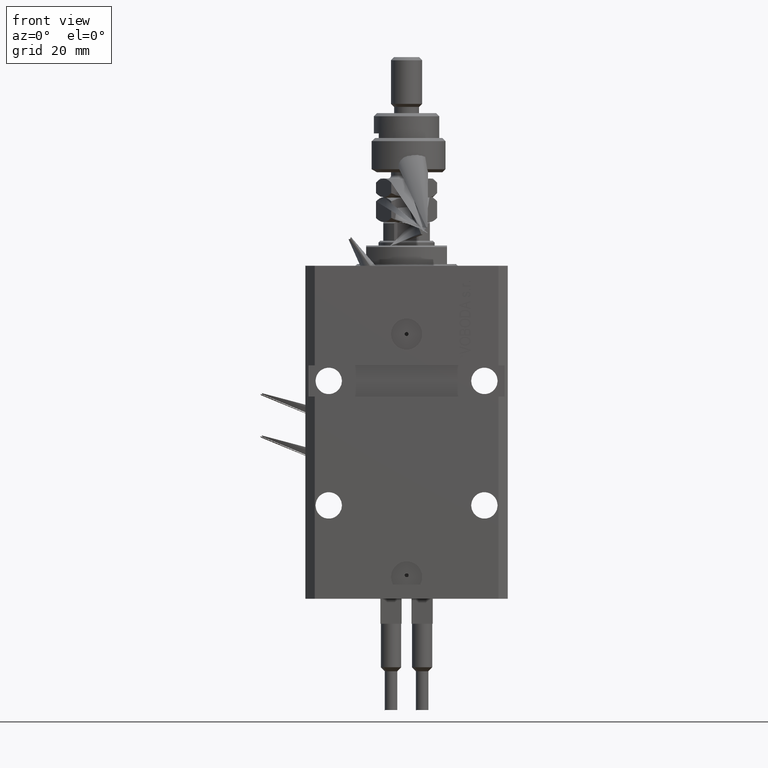
[diagram: clean part render]
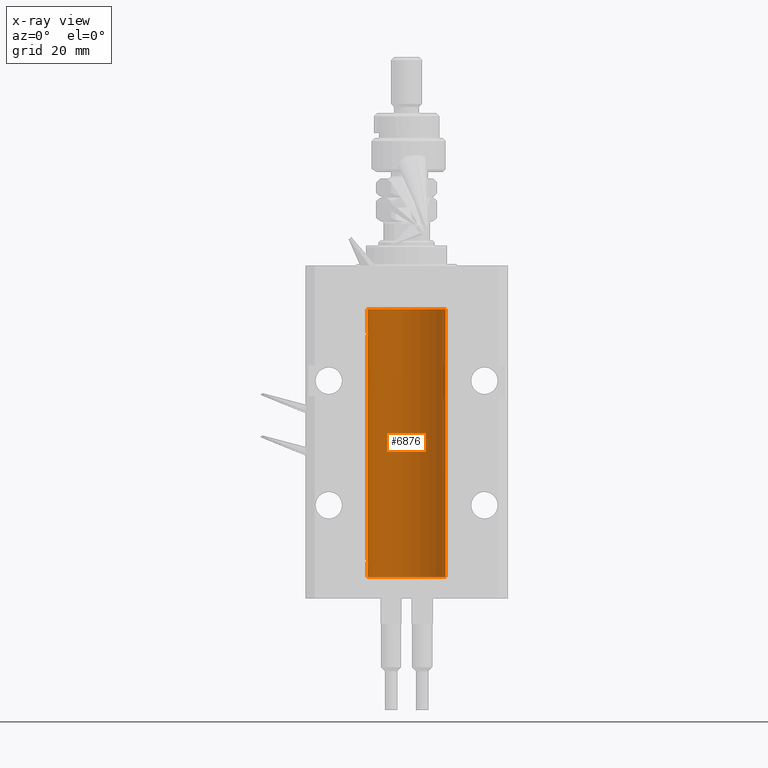
[diagram: x-ray — body ghosted, one internal face saturated and labeled with its STEP entity id]
A machine part, front view, then the same camera in x-ray: the body is ghosted and one INTERNAL B-rep face — a face not visible from any outside direction — is saturated and labeled: STEP entity #6876.
In plain terms, the highlighted cylindrical surface (partial cylindrical patch) has radius 12.5 mm, axis along (0, 0, 1).
Its self-contained STEP definition (entity closure, byte-faithful):
#354 = CARTESIAN_POINT ( 'NONE',  ( -12.50000000000017941, 3.883381646606358354E-13, -22.62500000000358824 ) ) ;
#2367 = CARTESIAN_POINT ( 'NONE',  ( -12.50000000000017941, 3.883381646606358354E-13, -22.62500000000358824 ) ) ;
#2562 = ORIENTED_EDGE ( 'NONE', *, *, #41286, .F. ) ;
#2933 = CARTESIAN_POINT ( 'NONE',  ( -12.50000000000000000, 1.530808498934191521E-15, -100.0999999999999943 ) ) ;
#3288 = EDGE_CURVE ( 'NONE', #6988, #47590, #38473, .T. ) ;
#3533 = CARTESIAN_POINT ( 'NONE',  ( -12.49625855304194033, 0.3150454781037993479, -94.45402800297488000 ) ) ;
#3614 = CARTESIAN_POINT ( 'NONE',  ( -12.49915784441386890, 0.1636601911727947889, -21.39126818989430490 ) ) ;
#4017 = CARTESIAN_POINT ( 'NONE',  ( 0.000000000000000000, 0.000000000000000000, -100.0999999999999943 ) ) ;
#5111 = EDGE_CURVE ( 'NONE', #18760, #12653, #10061, .T. ) ;
#6102 = CARTESIAN_POINT ( 'NONE',  ( 0.000000000000000000, 0.000000000000000000, -100.0999999999999943 ) ) ;
#6812 = CARTESIAN_POINT ( 'NONE',  ( 12.50000000000000000, 0.000000000000000000, -100.0999999999999943 ) ) ;
#6873 = DIRECTION ( 'NONE',  ( 0.000000000000000000, 0.000000000000000000, 1.000000000000000000 ) ) ;
#6876 = ADVANCED_FACE ( 'NONE', ( #51252 ), #11552, .F. ) ;
#6988 = VERTEX_POINT ( 'NONE', #23739 ) ;
#7413 = CARTESIAN_POINT ( 'NONE',  ( -12.49915784441387068, 0.1636601911727894876, -94.39126818989429069 ) ) ;
#7675 = CARTESIAN_POINT ( 'NONE',  ( -12.49422197749723829, 0.3843754434364257122, -94.50047099568094211 ) ) ;
#8282 = ORIENTED_EDGE ( 'NONE', *, *, #3288, .F. ) ;
#9020 = EDGE_CURVE ( 'NONE', #18760, #19748, #19164, .T. ) ;
#9682 = CARTESIAN_POINT ( 'NONE',  ( 12.50000000000000000, 0.000000000000000000, -100.0999999999999943 ) ) ;
#9754 = DIRECTION ( 'NONE',  ( 0.000000000000000000, 0.000000000000000000, 1.000000000000000000 ) ) ;
#10061 = B_SPLINE_CURVE_WITH_KNOTS ( 'NONE', 3,
 ( #11052, #27121, #7413, #3533, #7675, #31539, #31022, #19345, #43721, #51016, #35430, #15447, #39331, #31277 ),
 .UNSPECIFIED., .F., .F.,
 ( 4, 2, 2, 2, 2, 2, 4 ),
 ( 3.486178718436696769E-18, 0.0002442924852390829216, 0.0004885849704781623738, 0.0009771699409563507684, 0.001221462426195465403, 0.001465754911434580254, 0.001954339881912780900 ),
 .UNSPECIFIED. ) ;
#10840 = VERTEX_POINT ( 'NONE', #6812 ) ;
#11052 = CARTESIAN_POINT ( 'NONE',  ( -12.50000000000000000, -1.522152011595579853E-14, -94.37500000000000000 ) ) ;
#11383 = CARTESIAN_POINT ( 'NONE',  ( -12.50000000000000000, 1.530808498934191521E-15, -100.0999999999999943 ) ) ;
#11552 = CYLINDRICAL_SURFACE ( 'NONE', #46254, 12.50000000000000000 ) ;
#11652 = CARTESIAN_POINT ( 'NONE',  ( -12.48809959379011403, 0.5462151254764975317, -22.31461370481611795 ) ) ;
#12631 = ORIENTED_EDGE ( 'NONE', *, *, #5111, .T. ) ;
#12653 = VERTEX_POINT ( 'NONE', #22612 ) ;
#12683 = ORIENTED_EDGE ( 'NONE', *, *, #9020, .F. ) ;
#12795 = DIRECTION ( 'NONE',  ( -0.000000000000000000, -0.000000000000000000, 1.000000000000000000 ) ) ;
#13927 = EDGE_CURVE ( 'NONE', #6988, #19748, #16218, .T. ) ;
#15174 = LINE ( 'NONE', #34395, #20879 ) ;
#15447 = CARTESIAN_POINT ( 'NONE',  ( -12.49631005746706514, 0.3253680783018457756, -95.55856740465388555 ) ) ;
#15532 = CARTESIAN_POINT ( 'NONE',  ( -12.48810268015257563, 0.5573155909661349217, -21.67347410093867666 ) ) ;
#15675 = DIRECTION ( 'NONE',  ( -0.000000000000000000, -0.000000000000000000, 1.000000000000000000 ) ) ;
#16218 = B_SPLINE_CURVE_WITH_KNOTS ( 'NONE', 3,
 ( #23333, #23068, #3614, #38897, #39157, #15532, #19180, #19433, #47197, #11652, #27464, #20329, #35644, #354 ),
 .UNSPECIFIED., .F., .F.,
 ( 4, 2, 2, 2, 2, 2, 4 ),
 ( 2.030551168097110502E-20, 0.0002442924852390969078, 0.0004885849704781938157, 0.0009771699409563880650, 0.001221462426195485135, 0.001465754911434582423, 0.001954339881912776130 ),
 .UNSPECIFIED. ) ;
#17933 = CARTESIAN_POINT ( 'NONE',  ( -12.50000000000000000, 1.530808498934191521E-15, -100.0999999999999943 ) ) ;
#18355 = ORIENTED_EDGE ( 'NONE', *, *, #47850, .T. ) ;
#18733 = ORIENTED_EDGE ( 'NONE', *, *, #40241, .T. ) ;
#18760 = VERTEX_POINT ( 'NONE', #42307 ) ;
#19164 = LINE ( 'NONE', #11383, #20646 ) ;
#19180 = CARTESIAN_POINT ( 'NONE',  ( -12.48436813453758454, 0.6249418250771192618, -21.83668996798922635 ) ) ;
#19345 = CARTESIAN_POINT ( 'NONE',  ( -12.48436376893640620, 0.6250290278979871994, -95.08132082824478459 ) ) ;
#19433 = CARTESIAN_POINT ( 'NONE',  ( -12.48436376893640443, 0.6250290278979917513, -22.08132082824473486 ) ) ;
#19748 = VERTEX_POINT ( 'NONE', #2367 ) ;
#20329 = CARTESIAN_POINT ( 'NONE',  ( -12.49631005746706336, 0.3253680783018528255, -22.55856740465392463 ) ) ;
#20544 = AXIS2_PLACEMENT_3D ( 'NONE', #6102, #6873, #22687 ) ;
#20646 = VECTOR ( 'NONE', #27450, 1000.000000000000000 ) ;
#20879 = VECTOR ( 'NONE', #15675, 1000.000000000000000 ) ;
#21946 = CARTESIAN_POINT ( 'NONE',  ( 0.000000000000000000, 0.000000000000000000, -13.99999999999999822 ) ) ;
#22612 = CARTESIAN_POINT ( 'NONE',  ( -12.50000000000017941, 3.883381774819353300E-13, -95.62500000000359535 ) ) ;
#22687 = DIRECTION ( 'NONE',  ( 1.000000000000000000, 0.000000000000000000, 0.000000000000000000 ) ) ;
#23068 = CARTESIAN_POINT ( 'NONE',  ( -12.50000000000000000, 0.08260426088729219685, -21.37500000000000000 ) ) ;
#23333 = CARTESIAN_POINT ( 'NONE',  ( -12.50000000000000000, -2.089494013101375120E-17, -21.37499999999999645 ) ) ;
#23512 = CIRCLE ( 'NONE', #40895, 12.50000000000000000 ) ;
#23739 = CARTESIAN_POINT ( 'NONE',  ( -12.50000000000000000, -2.089494013101375120E-17, -21.37499999999999645 ) ) ;
#24465 = ORIENTED_EDGE ( 'NONE', *, *, #13927, .T. ) ;
#24971 = VECTOR ( 'NONE', #12795, 1000.000000000000000 ) ;
#26062 = CARTESIAN_POINT ( 'NONE',  ( 12.50000000000000000, 0.000000000000000000, -13.99999999999999822 ) ) ;
#27086 = ORIENTED_EDGE ( 'NONE', *, *, #29565, .F. ) ;
#27121 = CARTESIAN_POINT ( 'NONE',  ( -12.50000000000000000, 0.08260426088727994276, -94.37499999999998579 ) ) ;
#27450 = DIRECTION ( 'NONE',  ( -0.000000000000000000, -0.000000000000000000, 1.000000000000000000 ) ) ;
#27464 = CARTESIAN_POINT ( 'NONE',  ( -12.49011732893843529, 0.5003763274120274218, -22.38348111289287701 ) ) ;
#27730 = EDGE_LOOP ( 'NONE', ( #2562, #27086, #18733, #18355, #8282, #24465, #12683, #12631 ) ) ;
#29565 = EDGE_CURVE ( 'NONE', #10840, #49558, #40429, .T. ) ;
#31022 = CARTESIAN_POINT ( 'NONE',  ( -12.48436813453758631, 0.6249418250771134886, -94.83668996798924411 ) ) ;
#31277 = CARTESIAN_POINT ( 'NONE',  ( -12.50000000000017941, 3.883381774819353300E-13, -95.62500000000359535 ) ) ;
#31539 = CARTESIAN_POINT ( 'NONE',  ( -12.48810268015257741, 0.5573155909661239304, -94.67347410093871929 ) ) ;
#34395 = CARTESIAN_POINT ( 'NONE',  ( -12.50000000000000000, 1.530808498934191521E-15, -100.0999999999999943 ) ) ;
#34584 = DIRECTION ( 'NONE',  ( -0.000000000000000000, -0.000000000000000000, 1.000000000000000000 ) ) ;
#35117 = VERTEX_POINT ( 'NONE', #26062 ) ;
#35430 = CARTESIAN_POINT ( 'NONE',  ( -12.49011732893843529, 0.5003763274120199833, -95.38348111289285214 ) ) ;
#35644 = CARTESIAN_POINT ( 'NONE',  ( -12.49999999999999289, 0.1631761135151241215, -22.62499999999984013 ) ) ;
#38473 = LINE ( 'NONE', #2933, #48617 ) ;
#38599 = CARTESIAN_POINT ( 'NONE',  ( -12.50000000000000000, 1.530808498934191521E-15, -13.99999999999999822 ) ) ;
#38897 = CARTESIAN_POINT ( 'NONE',  ( -12.49625855304193678, 0.3150454781038042329, -21.45402800297484802 ) ) ;
#39157 = CARTESIAN_POINT ( 'NONE',  ( -12.49422197749724006, 0.3843754434364375916, -21.50047099568095277 ) ) ;
#39316 = DIRECTION ( 'NONE',  ( -0.000000000000000000, -0.000000000000000000, 1.000000000000000000 ) ) ;
#39331 = CARTESIAN_POINT ( 'NONE',  ( -12.49999999999999112, 0.1631761135151224562, -95.62499999999980105 ) ) ;
#40241 = EDGE_CURVE ( 'NONE', #10840, #35117, #44961, .T. ) ;
#40429 = CIRCLE ( 'NONE', #20544, 12.50000000000000000 ) ;
#40895 = AXIS2_PLACEMENT_3D ( 'NONE', #21946, #9754, #41140 ) ;
#41140 = DIRECTION ( 'NONE',  ( 1.000000000000000000, 0.000000000000000000, 0.000000000000000000 ) ) ;
#41286 = EDGE_CURVE ( 'NONE', #49558, #12653, #15174, .T. ) ;
#42307 = CARTESIAN_POINT ( 'NONE',  ( -12.50000000000000000, -1.522152011595579853E-14, -94.37500000000000000 ) ) ;
#43721 = CARTESIAN_POINT ( 'NONE',  ( -12.48520330846397997, 0.6088355886774070580, -95.16325431852561678 ) ) ;
#44961 = LINE ( 'NONE', #9682, #24971 ) ;
#46254 = AXIS2_PLACEMENT_3D ( 'NONE', #4017, #39316, #51003 ) ;
#47197 = CARTESIAN_POINT ( 'NONE',  ( -12.48520330846397819, 0.6088355886774127201, -22.16325431852561323 ) ) ;
#47590 = VERTEX_POINT ( 'NONE', #38599 ) ;
#47850 = EDGE_CURVE ( 'NONE', #35117, #47590, #23512, .T. ) ;
#48617 = VECTOR ( 'NONE', #34584, 1000.000000000000000 ) ;
#49558 = VERTEX_POINT ( 'NONE', #17933 ) ;
#51003 = DIRECTION ( 'NONE',  ( 1.000000000000000000, 0.000000000000000000, 0.000000000000000000 ) ) ;
#51016 = CARTESIAN_POINT ( 'NONE',  ( -12.48809959379011403, 0.5462151254764922026, -95.31461370481613926 ) ) ;
#51252 = FACE_OUTER_BOUND ( 'NONE', #27730, .T. ) ;